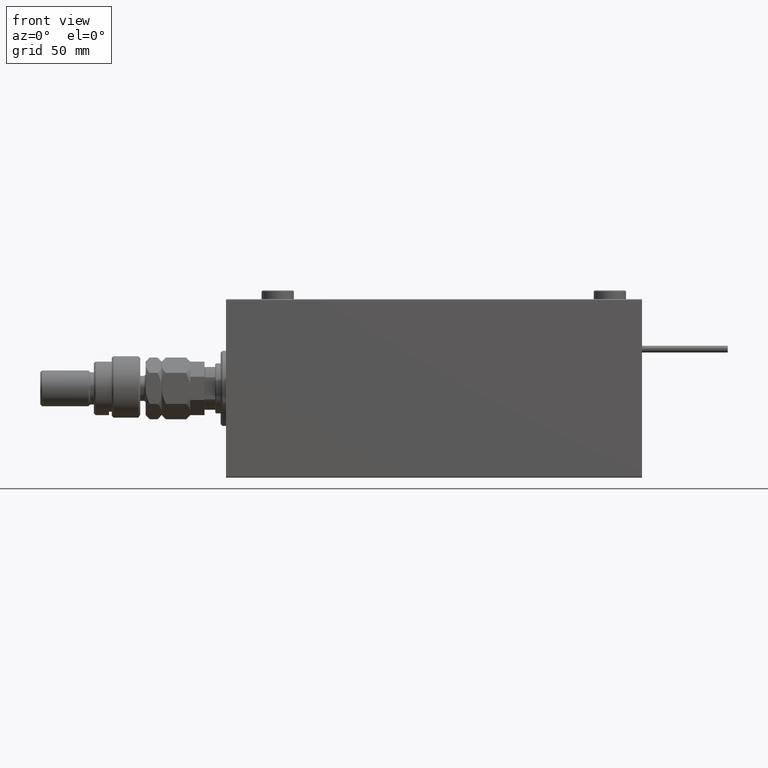
[diagram: clean part render]
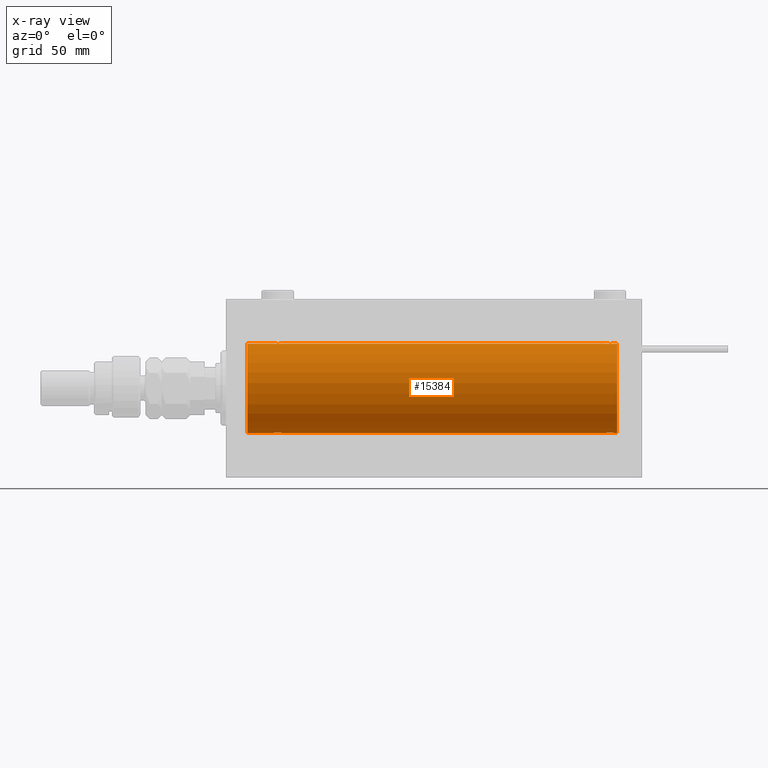
[diagram: x-ray — body ghosted, one internal face saturated and labeled with its STEP entity id]
A machine part, front view, then the same camera in x-ray: the body is ghosted and one INTERNAL B-rep face — a face not visible from any outside direction — is saturated and labeled: STEP entity #15384.
In plain terms, the highlighted cylindrical surface (partial cylindrical patch) has radius 25 mm, axis along (-1, -0, -0).
Its self-contained STEP definition (entity closure, byte-faithful):
#80 = B_SPLINE_CURVE_WITH_KNOTS ( 'NONE', 3,
 ( #44500, #9834, #47853, #5161, #43191, #13716, #52539, #47575, #14532, #26657, #1025, #23070, #5430, #5698, #18669, #22260, #31610, #39054, #1293, #18138, #51993, #34928, #51728, #35751, #35193, #30794, #51451, #10110, #31341, #13983, #14801, #43462 ),
 .UNSPECIFIED., .F., .F.,
 ( 4, 2, 2, 2, 2, 2, 2, 2, 2, 2, 2, 2, 2, 2, 2, 4 ),
 ( 0.007821024441662209614, 0.008309723826317810813, 0.008798423210973412012, 0.009287122595629013211, 0.009775821980284614410, 0.01026452136494021561, 0.01075322074959581681, 0.01124192013425141801, 0.01173061951890701921, 0.01221931890356262040, 0.01270801828821822160, 0.01319671767287382107, 0.01368541705752942227, 0.01417411644218502347, 0.01466281582684062466, 0.01564021459615182533 ),
 .UNSPECIFIED. ) ;
#358 = LINE ( 'NONE', #37859, #32134 ) ;
#411 = CARTESIAN_POINT ( 'NONE',  ( 217.4334935523974934, -0.6588655613945811895, 24.99312727339969697 ) ) ;
#507 = VECTOR ( 'NONE', #23808, 1000.000000000000000 ) ;
#733 = CARTESIAN_POINT ( 'NONE',  ( 219.0000000000000000, 0.000000000000000000, 25.00000000000000000 ) ) ;
#954 = CARTESIAN_POINT ( 'NONE',  ( 214.6705231988573530, -2.483544361357268304, 24.87635491893501793 ) ) ;
#1025 = CARTESIAN_POINT ( 'NONE',  ( 27.47463817756919013, -1.987446652080261167, 24.92104239223420592 ) ) ;
#1293 = CARTESIAN_POINT ( 'NONE',  ( 29.32596570039459749, -2.484007091859765648, 24.87630842367763506 ) ) ;
#1426 = VECTOR ( 'NONE', #12187, 1000.000000000000000 ) ;
#1766 = CARTESIAN_POINT ( 'NONE',  ( 31.42014909220928942, -0.6480119923854186226, -24.99212088949390420 ) ) ;
#1828 = LINE ( 'NONE', #14240, #34833 ) ;
#2039 = CARTESIAN_POINT ( 'NONE',  ( 27.47743225659810307, -1.989585286700239708, -24.92087098724766392 ) ) ;
#2526 = CARTESIAN_POINT ( 'NONE',  ( 217.4201490922093001, -0.6480119923854175124, -24.99212088949390775 ) ) ;
#2803 = CARTESIAN_POINT ( 'NONE',  ( 216.9874981583440103, -1.525407911884364420, -24.95379469572361941 ) ) ;
#2860 = CARTESIAN_POINT ( 'NONE',  ( 26.56650644760253499, -0.6588655613945862966, -24.99312727339971119 ) ) ;
#2955 = CARTESIAN_POINT ( 'NONE',  ( 219.0000000000000000, 0.000000000000000000, 0.000000000000000000 ) ) ;
#3085 = CARTESIAN_POINT ( 'NONE',  ( 213.1181404585135795, -1.653834020452956688, -24.94550385189584674 ) ) ;
#3214 = ORIENTED_EDGE ( 'NONE', *, *, #26312, .T. ) ;
#4492 = CARTESIAN_POINT ( 'NONE',  ( 26.50000000000000355, -1.940558383798427991E-23, 25.00000000000000000 ) ) ;
#4546 = CARTESIAN_POINT ( 'NONE',  ( 213.0125018416559897, -1.525407911884356205, 24.95379469572361586 ) ) ;
#4566 = CARTESIAN_POINT ( 'NONE',  ( 217.5000000000000284, 3.061616978453486307E-15, -25.00000000000000000 ) ) ;
#4821 = CARTESIAN_POINT ( 'NONE',  ( 217.5000000000000000, -0.3305063766663748903, 24.99999999999999289 ) ) ;
#5161 = CARTESIAN_POINT ( 'NONE',  ( 26.57985090779071058, -0.6480119923854222863, 24.99212088949390775 ) ) ;
#5430 = CARTESIAN_POINT ( 'NONE',  ( 27.88963203491135445, -2.245863995402899604, 24.89899750494197050 ) ) ;
#5631 = CARTESIAN_POINT ( 'NONE',  ( 213.1158761721353301, -1.651251241585103724, 24.94567559498349141 ) ) ;
#5698 = CARTESIAN_POINT ( 'NONE',  ( 28.19211657594193809, -2.371528299825746533, 24.88734287464370709 ) ) ;
#6091 = EDGE_CURVE ( 'NONE', #15762, #52538, #358, .T. ) ;
#6172 = CARTESIAN_POINT ( 'NONE',  ( 30.65383336149337623, -1.881857718844709870, -24.92933960374833191 ) ) ;
#6726 = CARTESIAN_POINT ( 'NONE',  ( 26.50000000000001066, -0.3305063766663757785, -25.00000000000000355 ) ) ;
#6944 = CARTESIAN_POINT ( 'NONE',  ( 217.1701129028092794, -1.252049606094334688, -24.96900299967627390 ) ) ;
#8476 = ORIENTED_EDGE ( 'NONE', *, *, #38762, .F. ) ;
#8575 = VERTEX_POINT ( 'NONE', #35500 ) ;
#8689 = CARTESIAN_POINT ( 'NONE',  ( 215.1632358963854870, -2.500125740978193178, 24.87467329022544504 ) ) ;
#8746 = LINE ( 'NONE', #733, #47196 ) ;
#8862 = AXIS2_PLACEMENT_3D ( 'NONE', #2955, #48970, #11230 ) ;
#8953 = CARTESIAN_POINT ( 'NONE',  ( 213.7461680457550131, -2.169003991399866216, 24.90589728951138682 ) ) ;
#9228 = CARTESIAN_POINT ( 'NONE',  ( 214.8329350482194116, -2.499872792855079240, 24.87469871246083031 ) ) ;
#9490 = CARTESIAN_POINT ( 'NONE',  ( 213.4746381775692328, -1.987446652080256948, 24.92104239223420592 ) ) ;
#9765 = CARTESIAN_POINT ( 'NONE',  ( 217.5000000000000284, 1.404322005998729010E-15, 25.00000000000000000 ) ) ;
#9834 = CARTESIAN_POINT ( 'NONE',  ( 26.50000000000000711, -0.1631750940176201481, 25.00000000000000711 ) ) ;
#10110 = CARTESIAN_POINT ( 'NONE',  ( 31.16827641493956591, -1.255214705003188547, 24.96884293994578030 ) ) ;
#10207 = CARTESIAN_POINT ( 'NONE',  ( 219.0000000000000000, 0.000000000000000000, 0.000000000000000000 ) ) ;
#10316 = CARTESIAN_POINT ( 'NONE',  ( 31.48417840057656747, -0.3254210271412188993, -24.99840249400844883 ) ) ;
#10872 = CARTESIAN_POINT ( 'NONE',  ( 27.89276154161590426, -2.247417070759891278, -24.89885693081946272 ) ) ;
#10982 = EDGE_CURVE ( 'NONE', #46015, #28552, #1828, .T. ) ;
#11015 = CARTESIAN_POINT ( 'NONE',  ( 12.00000000000001066, 0.000000000000000000, 0.000000000000000000 ) ) ;
#11190 = CARTESIAN_POINT ( 'NONE',  ( 219.0000000000000000, 3.061616997868383043E-15, -25.00000000000000000 ) ) ;
#11230 = DIRECTION ( 'NONE',  ( 0.000000000000000000, 0.000000000000000000, 1.000000000000000000 ) ) ;
#11415 = CARTESIAN_POINT ( 'NONE',  ( 27.34878866440888601, -1.884161199660611796, -24.92916496727982434 ) ) ;
#11623 = CARTESIAN_POINT ( 'NONE',  ( 213.7491597607595111, -2.170728182476739043, -24.90574631553725027 ) ) ;
#11735 = LINE ( 'NONE', #11190, #27967 ) ;
#12168 = CARTESIAN_POINT ( 'NONE',  ( 212.7539362090593897, -1.109818057797430813, -24.97580694515542987 ) ) ;
#12187 = DIRECTION ( 'NONE',  ( -1.000000000000000000, -0.000000000000000000, -0.000000000000000000 ) ) ;
#12414 = EDGE_CURVE ( 'NONE', #40473, #36957, #49924, .T. ) ;
#12437 = CARTESIAN_POINT ( 'NONE',  ( 215.8078834240581898, -2.371528299825750974, -24.88734287464371420 ) ) ;
#12842 = CARTESIAN_POINT ( 'NONE',  ( 212.7523974898045367, -1.106703319666880958, 24.97594585958023217 ) ) ;
#12972 = ORIENTED_EDGE ( 'NONE', *, *, #53283, .F. ) ;
#13643 = CARTESIAN_POINT ( 'NONE',  ( 212.5158215994233899, -0.3254210271412208977, 24.99840249400844527 ) ) ;
#13716 = CARTESIAN_POINT ( 'NONE',  ( 26.75239748980449050, -1.106703319666882734, 24.97594585958023572 ) ) ;
#13983 = CARTESIAN_POINT ( 'NONE',  ( 31.43349355239748988, -0.6588655613945948453, 24.99312727339971119 ) ) ;
#14130 = CARTESIAN_POINT ( 'NONE',  ( 216.6538333614934118, -1.881857718844729632, -24.92933960374833546 ) ) ;
#14240 = CARTESIAN_POINT ( 'NONE',  ( 219.0000000000000000, 0.000000000000000000, 25.00000000000000000 ) ) ;
#14347 = DIRECTION ( 'NONE',  ( 0.000000000000000000, 0.000000000000000000, 1.000000000000000000 ) ) ;
#14455 = EDGE_CURVE ( 'NONE', #8575, #26299, #11735, .T. ) ;
#14532 = CARTESIAN_POINT ( 'NONE',  ( 27.11587617213528745, -1.651251241585102392, 24.94567559498348430 ) ) ;
#14750 = CARTESIAN_POINT ( 'NONE',  ( 31.50000000000000000, 3.061616978460191625E-15, -25.00000000000000000 ) ) ;
#14801 = CARTESIAN_POINT ( 'NONE',  ( 31.49999999999994316, -0.3305063766663668412, 25.00000000000000000 ) ) ;
#14990 = ORIENTED_EDGE ( 'NONE', *, *, #26586, .T. ) ;
#15268 = CARTESIAN_POINT ( 'NONE',  ( 219.0000000000000000, 0.000000000000000000, 25.00000000000000000 ) ) ;
#15285 = CARTESIAN_POINT ( 'NONE',  ( 28.19564339083697746, -2.372734907014167671, -24.88722742718433167 ) ) ;
#15384 = ADVANCED_FACE ( 'NONE', ( #47130 ), #19040, .F. ) ;
#15762 = VERTEX_POINT ( 'NONE', #21742 ) ;
#17556 = CIRCLE ( 'NONE', #44817, 25.00000000000000000 ) ;
#17781 = CARTESIAN_POINT ( 'NONE',  ( 216.5225677434019644, -1.989585286700252809, 24.92087098724766747 ) ) ;
#18138 = CARTESIAN_POINT ( 'NONE',  ( 29.64560666148631185, -2.420689345803761938, 24.88254961038873958 ) ) ;
#18432 = CARTESIAN_POINT ( 'NONE',  ( 219.0000000000000000, 0.000000000000000000, 25.00000000000000000 ) ) ;
#18603 = CARTESIAN_POINT ( 'NONE',  ( 31.37215969408608274, -0.8058335233485438565, -24.98746277938383997 ) ) ;
#18669 = CARTESIAN_POINT ( 'NONE',  ( 28.35095609830903385, -2.419770561643910245, 24.88263927071751169 ) ) ;
#18871 = CARTESIAN_POINT ( 'NONE',  ( 27.01461966282905891, -1.528152964861306584, -24.95362559291379156 ) ) ;
#18903 = CARTESIAN_POINT ( 'NONE',  ( 12.00000000000001066, 0.000000000000000000, 25.00000000000000000 ) ) ;
#19040 = CYLINDRICAL_SURFACE ( 'NONE', #28867, 25.00000000000000000 ) ;
#19364 = CARTESIAN_POINT ( 'NONE',  ( 217.3721596940861218, -0.8058335233485458549, -24.98746277938383287 ) ) ;
#19426 = CARTESIAN_POINT ( 'NONE',  ( 26.75393620905933645, -1.109818057797413715, -24.97580694515542277 ) ) ;
#19707 = CARTESIAN_POINT ( 'NONE',  ( 26.83172358506042698, -1.255214705003176112, -24.96884293994577320 ) ) ;
#21139 = ORIENTED_EDGE ( 'NONE', *, *, #12414, .T. ) ;
#21646 = CARTESIAN_POINT ( 'NONE',  ( 212.8298870971908059, -1.252049606094326695, 24.96900299967627390 ) ) ;
#21742 = CARTESIAN_POINT ( 'NONE',  ( 26.50000000000000355, -1.828402720252098442E-15, -25.00000000000000000 ) ) ;
#22260 = CARTESIAN_POINT ( 'NONE',  ( 28.67052319885731038, -2.483544361357272301, 24.87635491893501793 ) ) ;
#22463 = CARTESIAN_POINT ( 'NONE',  ( 212.5000000000000000, -0.1631750940176186493, 25.00000000000001066 ) ) ;
#22727 = CARTESIAN_POINT ( 'NONE',  ( 29.80788342405805835, -2.371528299825740760, -24.88734287464371064 ) ) ;
#23001 = CARTESIAN_POINT ( 'NONE',  ( 31.17011290280924740, -1.252049606094333578, -24.96900299967627390 ) ) ;
#23070 = CARTESIAN_POINT ( 'NONE',  ( 27.74616804575497042, -2.169003991399869768, 24.90589728951138326 ) ) ;
#23271 = CARTESIAN_POINT ( 'NONE',  ( 30.98749815834397481, -1.525407911884360868, -24.95379469572361941 ) ) ;
#23808 = DIRECTION ( 'NONE',  ( -1.000000000000000000, -0.000000000000000000, -0.000000000000000000 ) ) ;
#23823 = CARTESIAN_POINT ( 'NONE',  ( 28.83676410361456632, -2.500125740978188738, -24.87467329022545215 ) ) ;
#25108 = CARTESIAN_POINT ( 'NONE',  ( 214.8367641036145415, -2.500125740978206057, -24.87467329022544504 ) ) ;
#25253 = ORIENTED_EDGE ( 'NONE', *, *, #10982, .F. ) ;
#25508 = CARTESIAN_POINT ( 'NONE',  ( 216.8818595414864774, -1.653834020452942477, 24.94550385189585029 ) ) ;
#25771 = CARTESIAN_POINT ( 'NONE',  ( 213.3461666385066735, -1.881857718844717642, 24.92933960374833546 ) ) ;
#26051 = CARTESIAN_POINT ( 'NONE',  ( 215.6456066614862834, -2.420689345803761938, 24.88254961038872892 ) ) ;
#26299 = VERTEX_POINT ( 'NONE', #14750 ) ;
#26312 = EDGE_CURVE ( 'NONE', #46015, #36903, #80, .T. ) ;
#26314 = CARTESIAN_POINT ( 'NONE',  ( 217.2460637909407808, -1.109818057797409718, 24.97580694515542632 ) ) ;
#26586 = EDGE_CURVE ( 'NONE', #36957, #8575, #46949, .T. ) ;
#26610 = ORIENTED_EDGE ( 'NONE', *, *, #45688, .T. ) ;
#26657 = CARTESIAN_POINT ( 'NONE',  ( 27.34616663850662377, -1.881857718844717642, 24.92933960374834257 ) ) ;
#27128 = CARTESIAN_POINT ( 'NONE',  ( 26.50000000000000355, -1.828402720252098442E-15, -25.00000000000000000 ) ) ;
#27401 = CARTESIAN_POINT ( 'NONE',  ( 29.64904390169096970, -2.419770561643902695, -24.88263927071750459 ) ) ;
#27572 = CARTESIAN_POINT ( 'NONE',  ( 212.5000000000000284, -1.941505016884693205E-23, 25.00000000000000000 ) ) ;
#27902 = CARTESIAN_POINT ( 'NONE',  ( 217.2476025101955770, -1.106703319666884511, -24.97594585958023927 ) ) ;
#27967 = VECTOR ( 'NONE', #28555, 1000.000000000000000 ) ;
#28176 = CARTESIAN_POINT ( 'NONE',  ( 212.5000000000000284, -2.120113447159002470E-14, -25.00000000000000000 ) ) ;
#28444 = CARTESIAN_POINT ( 'NONE',  ( 213.3487886644088860, -1.884161199660634667, -24.92916496727982079 ) ) ;
#28552 = VERTEX_POINT ( 'NONE', #18903 ) ;
#28555 = DIRECTION ( 'NONE',  ( -1.000000000000000000, -0.000000000000000000, -0.000000000000000000 ) ) ;
#28867 = AXIS2_PLACEMENT_3D ( 'NONE', #10207, #43552, #14347 ) ;
#28983 = CARTESIAN_POINT ( 'NONE',  ( 213.0146196628290625, -1.528152964861330343, -24.95362559291378801 ) ) ;
#29249 = CARTESIAN_POINT ( 'NONE',  ( 213.8927615416158687, -2.247417070759907709, -24.89885693081946982 ) ) ;
#29268 = CARTESIAN_POINT ( 'NONE',  ( 219.0000000000000000, 3.061616997868383043E-15, -25.00000000000000000 ) ) ;
#29926 = CARTESIAN_POINT ( 'NONE',  ( 212.5798509077907852, -0.6480119923854213981, 24.99212088949391131 ) ) ;
#30189 = CARTESIAN_POINT ( 'NONE',  ( 213.8896320349114433, -2.245863995402900049, 24.89899750494197050 ) ) ;
#30247 = DIRECTION ( 'NONE',  ( -1.000000000000000000, -0.000000000000000000, -0.000000000000000000 ) ) ;
#30454 = EDGE_CURVE ( 'NONE', #26299, #15762, #39099, .T. ) ;
#30794 = CARTESIAN_POINT ( 'NONE',  ( 30.88185954148645251, -1.653834020452944475, 24.94550385189585029 ) ) ;
#30908 = ORIENTED_EDGE ( 'NONE', *, *, #14455, .T. ) ;
#30936 = CARTESIAN_POINT ( 'NONE',  ( 216.5253618224308241, -1.987446652080269383, -24.92104239223419881 ) ) ;
#31266 = CARTESIAN_POINT ( 'NONE',  ( 29.32947680114268962, -2.483544361357264751, -24.87635491893502149 ) ) ;
#31341 = CARTESIAN_POINT ( 'NONE',  ( 31.24606379094066000, -1.109818057797423929, 24.97580694515541921 ) ) ;
#31610 = CARTESIAN_POINT ( 'NONE',  ( 28.83293504821939379, -2.499872792855082348, 24.87469871246083031 ) ) ;
#31807 = CARTESIAN_POINT ( 'NONE',  ( 31.50000000000000000, 3.061616978460191625E-15, -25.00000000000000000 ) ) ;
#32134 = VECTOR ( 'NONE', #46642, 1000.000000000000000 ) ;
#32230 = DIRECTION ( 'NONE',  ( 0.000000000000000000, 0.000000000000000000, 1.000000000000000000 ) ) ;
#32300 = CARTESIAN_POINT ( 'NONE',  ( 212.5665064476025918, -0.6588655613946002854, -24.99312727339970763 ) ) ;
#32358 = CARTESIAN_POINT ( 'NONE',  ( 28.35439333851368815, -2.420689345803754833, -24.88254961038873958 ) ) ;
#32847 = CARTESIAN_POINT ( 'NONE',  ( 213.4774322565981777, -1.989585286700266353, -24.92087098724766037 ) ) ;
#33115 = CARTESIAN_POINT ( 'NONE',  ( 216.1103679650887841, -2.245863995402900049, -24.89899750494197761 ) ) ;
#33648 = VERTEX_POINT ( 'NONE', #18432 ) ;
#34316 = CARTESIAN_POINT ( 'NONE',  ( 212.6278403059139919, -0.8058335233485443005, 24.98746277938383287 ) ) ;
#34558 = CARTESIAN_POINT ( 'NONE',  ( 217.5000000000000284, 1.404322005998729010E-15, 25.00000000000000000 ) ) ;
#34633 = ORIENTED_EDGE ( 'NONE', *, *, #6091, .T. ) ;
#34833 = VECTOR ( 'NONE', #51439, 1000.000000000000000 ) ;
#34856 = CARTESIAN_POINT ( 'NONE',  ( 215.3259657003945620, -2.484007091859763872, 24.87630842367762796 ) ) ;
#34928 = CARTESIAN_POINT ( 'NONE',  ( 30.10723845838409929, -2.247417070759900604, 24.89885693081946272 ) ) ;
#35125 = CARTESIAN_POINT ( 'NONE',  ( 216.1072384583841028, -2.247417070759893942, 24.89885693081946627 ) ) ;
#35193 = CARTESIAN_POINT ( 'NONE',  ( 30.65121133559111755, -1.884161199660622676, 24.92916496727982434 ) ) ;
#35263 = VERTEX_POINT ( 'NONE', #34558 ) ;
#35500 = CARTESIAN_POINT ( 'NONE',  ( 212.5000000000000284, -2.120113447159002470E-14, -25.00000000000000000 ) ) ;
#35676 = CARTESIAN_POINT ( 'NONE',  ( 27.11814045851354393, -1.653834020452933151, -24.94550385189584674 ) ) ;
#35751 = CARTESIAN_POINT ( 'NONE',  ( 30.52256774340189338, -1.989585286700249256, 24.92087098724766747 ) ) ;
#35886 = CARTESIAN_POINT ( 'NONE',  ( 217.5000000000000284, -0.1631750940176159292, -25.00000000000000711 ) ) ;
#36219 = CARTESIAN_POINT ( 'NONE',  ( 30.88412382786471611, -1.651251241585095508, -24.94567559498348785 ) ) ;
#36481 = LINE ( 'NONE', #15268, #507 ) ;
#36903 = VERTEX_POINT ( 'NONE', #52623 ) ;
#36957 = VERTEX_POINT ( 'NONE', #4566 ) ;
#37525 = CARTESIAN_POINT ( 'NONE',  ( 215.1670649517806169, -2.499872792855091674, -24.87469871246082675 ) ) ;
#37704 = VERTEX_POINT ( 'NONE', #27572 ) ;
#37859 = CARTESIAN_POINT ( 'NONE',  ( 219.0000000000000000, 3.061616997868383043E-15, -25.00000000000000000 ) ) ;
#38180 = CARTESIAN_POINT ( 'NONE',  ( 212.5000000000000284, -1.941505016884693205E-23, 25.00000000000000000 ) ) ;
#38448 = CARTESIAN_POINT ( 'NONE',  ( 216.9853803371709375, -1.528152964861297258, 24.95362559291378446 ) ) ;
#38762 = EDGE_CURVE ( 'NONE', #37704, #36903, #36481, .T. ) ;
#39054 = CARTESIAN_POINT ( 'NONE',  ( 29.16323589638541947, -2.500125740978196731, 24.87467329022545215 ) ) ;
#39099 = B_SPLINE_CURVE_WITH_KNOTS ( 'NONE', 3,
 ( #31807, #48052, #10316, #1766, #18603, #40616, #23001, #23271, #36219, #6172, #49154, #39799, #44484, #22727, #27401, #31266, #52742, #23823, #39525, #32358, #15285, #10872, #48886, #2039, #11415, #35676, #18871, #19707, #19426, #2860, #6726, #27128 ),
 .UNSPECIFIED., .F., .F.,
 ( 4, 2, 2, 2, 2, 2, 2, 2, 2, 2, 2, 2, 2, 2, 2, 4 ),
 ( 0.007821024441662299820, 0.008309723826317909692, 0.008798423210973517830, 0.009287122595629124233, 0.009775821980284728902, 0.01026452136494033357, 0.01075322074959593997, 0.01124192013425154464, 0.01173061951890715104, 0.01221931890356275571, 0.01270801828821836038, 0.01319671767287396852, 0.01368541705752957319, 0.01417411644218517959, 0.01466281582684078426, 0.01564021459615199533 ),
 .UNSPECIFIED. ) ;
#39327 = CARTESIAN_POINT ( 'NONE',  ( 219.0000000000000000, 3.061616997868383043E-15, -25.00000000000000000 ) ) ;
#39475 = CARTESIAN_POINT ( 'NONE',  ( 217.5000000000000284, 3.061616978453486307E-15, -25.00000000000000000 ) ) ;
#39525 = CARTESIAN_POINT ( 'NONE',  ( 28.67403429960539896, -2.484007091859758543, -24.87630842367763151 ) ) ;
#39648 = EDGE_CURVE ( 'NONE', #33648, #35263, #8746, .T. ) ;
#39799 = CARTESIAN_POINT ( 'NONE',  ( 30.25383195424503313, -2.169003991399864884, -24.90589728951138682 ) ) ;
#40473 = VERTEX_POINT ( 'NONE', #39327 ) ;
#40616 = CARTESIAN_POINT ( 'NONE',  ( 31.24760251019551305, -1.106703319666880514, -24.97594585958023927 ) ) ;
#40763 = EDGE_CURVE ( 'NONE', #37704, #35263, #46090, .T. ) ;
#41111 = CARTESIAN_POINT ( 'NONE',  ( 215.3294768011427323, -2.483544361357277186, -24.87635491893501083 ) ) ;
#41912 = CARTESIAN_POINT ( 'NONE',  ( 214.6740342996054096, -2.484007091859776750, -24.87630842367763151 ) ) ;
#42310 = CARTESIAN_POINT ( 'NONE',  ( 214.3509560983090694, -2.419770561643906248, 24.88263927071751169 ) ) ;
#42581 = CARTESIAN_POINT ( 'NONE',  ( 217.1682764149396121, -1.255214705003166564, 24.96884293994578385 ) ) ;
#42845 = CARTESIAN_POINT ( 'NONE',  ( 216.2508402392405173, -2.170728182476725276, 24.90574631553724672 ) ) ;
#43168 = EDGE_LOOP ( 'NONE', ( #12972, #21139, #14990, #30908, #49548, #34633, #26610, #25253, #3214, #8476, #47284, #54358 ) ) ;
#43191 = CARTESIAN_POINT ( 'NONE',  ( 26.62784030591392792, -0.8058335233485458549, 24.98746277938383642 ) ) ;
#43462 = CARTESIAN_POINT ( 'NONE',  ( 31.50000000000000000, -1.226224324124162886E-14, 25.00000000000000000 ) ) ;
#43552 = DIRECTION ( 'NONE',  ( -1.000000000000000000, -0.000000000000000000, -0.000000000000000000 ) ) ;
#44484 = CARTESIAN_POINT ( 'NONE',  ( 30.11036796508864555, -2.245863995402895164, -24.89899750494197406 ) ) ;
#44500 = CARTESIAN_POINT ( 'NONE',  ( 26.50000000000000355, -1.940558383798427991E-23, 25.00000000000000000 ) ) ;
#44817 = AXIS2_PLACEMENT_3D ( 'NONE', #11015, #53164, #32230 ) ;
#45508 = CARTESIAN_POINT ( 'NONE',  ( 216.2538319542450722, -2.169003991399879538, -24.90589728951138682 ) ) ;
#45688 = EDGE_CURVE ( 'NONE', #52538, #28552, #17556, .T. ) ;
#46015 = VERTEX_POINT ( 'NONE', #4492 ) ;
#46090 = B_SPLINE_CURVE_WITH_KNOTS ( 'NONE', 3,
 ( #38180, #22463, #13643, #29926, #34316, #12842, #21646, #4546, #5631, #25771, #9490, #8953, #30189, #46964, #42310, #954, #9228, #8689, #34856, #26051, #46432, #35125, #42845, #17781, #50840, #25508, #38448, #42581, #26314, #411, #4821, #9765 ),
 .UNSPECIFIED., .F., .F.,
 ( 4, 2, 2, 2, 2, 2, 2, 2, 2, 2, 2, 2, 2, 2, 2, 4 ),
 ( 0.007821024441662296350, 0.008309723826317906223, 0.008798423210973516095, 0.009287122595629124233, 0.009775821980284732371, 0.01026452136494034224, 0.01075322074959595212, 0.01124192013425156025, 0.01173061951890716839, 0.01221931890356277826, 0.01270801828821838814, 0.01319671767287399627, 0.01368541705752960788, 0.01417411644218521602, 0.01466281582684082589, 0.01564021459615201268 ),
 .UNSPECIFIED. ) ;
#46432 = CARTESIAN_POINT ( 'NONE',  ( 215.8043566091630794, -2.372734907014173000, 24.88722742718433878 ) ) ;
#46642 = DIRECTION ( 'NONE',  ( -1.000000000000000000, -0.000000000000000000, -0.000000000000000000 ) ) ;
#46949 = B_SPLINE_CURVE_WITH_KNOTS ( 'NONE', 3,
 ( #39475, #35886, #48819, #2526, #19364, #27902, #6944, #2803, #51869, #14130, #30936, #45508, #33115, #12437, #49908, #41111, #37525, #25108, #41912, #49369, #53511, #29249, #11623, #32847, #28444, #3085, #28983, #50175, #12168, #32300, #49638, #28176 ),
 .UNSPECIFIED., .F., .F.,
 ( 4, 2, 2, 2, 2, 2, 2, 2, 2, 2, 2, 2, 2, 2, 2, 4 ),
 ( 0.007821024441662280738, 0.008309723826317890610, 0.008798423210973498748, 0.009287122595629108621, 0.009775821980284716758, 0.01026452136494032663, 0.01075322074959593477, 0.01124192013425154464, 0.01173061951890715451, 0.01221931890356276265, 0.01270801828821837079, 0.01319671767287398240, 0.01368541705752959053, 0.01417411644218519867, 0.01466281582684080854, 0.01564021459615199533 ),
 .UNSPECIFIED. ) ;
#46964 = CARTESIAN_POINT ( 'NONE',  ( 214.1921165759419239, -2.371528299825747421, 24.88734287464370709 ) ) ;
#47130 = FACE_OUTER_BOUND ( 'NONE', #43168, .T. ) ;
#47196 = VECTOR ( 'NONE', #30247, 1000.000000000000000 ) ;
#47284 = ORIENTED_EDGE ( 'NONE', *, *, #40763, .T. ) ;
#47575 = CARTESIAN_POINT ( 'NONE',  ( 27.01250184165601098, -1.525407911884366197, 24.95379469572361941 ) ) ;
#47853 = CARTESIAN_POINT ( 'NONE',  ( 26.51582159942343253, -0.3254210271412221744, 24.99840249400844883 ) ) ;
#48052 = CARTESIAN_POINT ( 'NONE',  ( 31.49999999999999289, -0.1631750940176170117, -25.00000000000000711 ) ) ;
#48819 = CARTESIAN_POINT ( 'NONE',  ( 217.4841784005766385, -0.3254210271412166788, -24.99840249400845238 ) ) ;
#48886 = CARTESIAN_POINT ( 'NONE',  ( 27.74915976075944712, -2.170728182476714174, -24.90574631553725027 ) ) ;
#48970 = DIRECTION ( 'NONE',  ( -1.000000000000000000, 0.000000000000000000, 0.000000000000000000 ) ) ;
#49154 = CARTESIAN_POINT ( 'NONE',  ( 30.52536182243080631, -1.987446652080256504, -24.92104239223419881 ) ) ;
#49342 = CIRCLE ( 'NONE', #8862, 25.00000000000000000 ) ;
#49369 = CARTESIAN_POINT ( 'NONE',  ( 214.3543933385136597, -2.420689345803774817, -24.88254961038872892 ) ) ;
#49548 = ORIENTED_EDGE ( 'NONE', *, *, #30454, .T. ) ;
#49638 = CARTESIAN_POINT ( 'NONE',  ( 212.4999999999999716, -0.3305063766663960956, -24.99999999999999645 ) ) ;
#49908 = CARTESIAN_POINT ( 'NONE',  ( 215.6490439016910159, -2.419770561643912021, -24.88263927071751169 ) ) ;
#49924 = LINE ( 'NONE', #29268, #1426 ) ;
#50175 = CARTESIAN_POINT ( 'NONE',  ( 212.8317235850605869, -1.255214705003201425, -24.96884293994579096 ) ) ;
#50755 = CARTESIAN_POINT ( 'NONE',  ( 12.00000000000001066, 3.061616997868383043E-15, -25.00000000000000000 ) ) ;
#50840 = CARTESIAN_POINT ( 'NONE',  ( 216.6512113355911993, -1.884161199660621344, 24.92916496727982789 ) ) ;
#51439 = DIRECTION ( 'NONE',  ( -1.000000000000000000, -0.000000000000000000, -0.000000000000000000 ) ) ;
#51451 = CARTESIAN_POINT ( 'NONE',  ( 30.98538033717094464, -1.528152964861317464, 24.95362559291378801 ) ) ;
#51728 = CARTESIAN_POINT ( 'NONE',  ( 30.25084023924055288, -2.170728182476723500, 24.90574631553725027 ) ) ;
#51869 = CARTESIAN_POINT ( 'NONE',  ( 216.8841238278646699, -1.651251241585114382, -24.94567559498349141 ) ) ;
#51993 = CARTESIAN_POINT ( 'NONE',  ( 29.80435660916301899, -2.372734907014176997, 24.88722742718433878 ) ) ;
#52538 = VERTEX_POINT ( 'NONE', #50755 ) ;
#52539 = CARTESIAN_POINT ( 'NONE',  ( 26.82988709719075970, -1.252049606094338907, 24.96900299967627390 ) ) ;
#52623 = CARTESIAN_POINT ( 'NONE',  ( 31.50000000000000000, -1.226224324124162886E-14, 25.00000000000000000 ) ) ;
#52742 = CARTESIAN_POINT ( 'NONE',  ( 29.16706495178059910, -2.499872792855075687, -24.87469871246081965 ) ) ;
#53164 = DIRECTION ( 'NONE',  ( -1.000000000000000000, 0.000000000000000000, 0.000000000000000000 ) ) ;
#53283 = EDGE_CURVE ( 'NONE', #40473, #33648, #49342, .T. ) ;
#53511 = CARTESIAN_POINT ( 'NONE',  ( 214.1956433908369775, -2.372734907014184103, -24.88722742718433167 ) ) ;
#54358 = ORIENTED_EDGE ( 'NONE', *, *, #39648, .F. ) ;